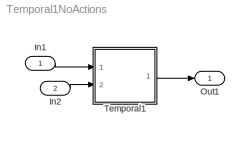
MODEL Temporal1NoActions
KIND model
BLOCK [Inport] In1
  IconDisplay = Port number
  OutDataTypeStr = boolean
  SID = 7
BLOCK [Inport] In2
  IconDisplay = Port number
  OutDataTypeStr = boolean
  Port = 2
  SID = 8
BLOCK [Outport] Out1
  IconDisplay = Port number
  SID = 6
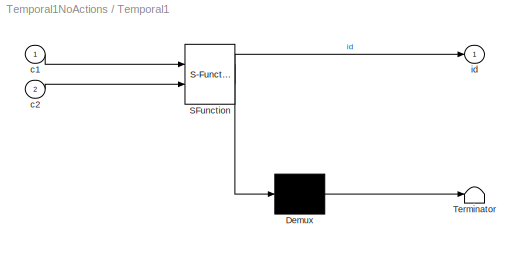
BLOCK [SubSystem] Temporal1
  ErrorFcn = Stateflow.Translate.translate
  PermitHierarchicalResolution = ExplicitOnly
  Ports = [2, 1]
  RequestExecContextInheritance = off
  SFBlockType = Chart
  SID = 1
  TreatAsAtomicUnit = on
  Variant = off
BLOCK [Demux] Temporal1/ Demux 
  Outputs = 1
  Ports = [1, 1]
  SID = 1::13
BLOCK [S-Function] Temporal1/ SFunction 
  EnableBusSupport = on
  FunctionName = sf_sfun
  PortCounts = [2 2]
  Ports = [2, 2]
  SFcnIsStateOwnerBlock = off
  SFunctionDeploymentMode = off
  SID = 1::12
  Tag = Stateflow S-Function Temporal1NoActions 1
BLOCK [Terminator] Temporal1/ Terminator 
  SID = 1::14
BLOCK [Inport] Temporal1/c1
  IconDisplay = Port number
  SID = 1::15
BLOCK [Inport] Temporal1/c2
  IconDisplay = Port number
  Port = 2
  SID = 1::16
BLOCK [Outport] Temporal1/id
  IconDisplay = Port number
  SID = 1::17
LINE In1:1 -> Temporal1:1
LINE In2:1 -> Temporal1:2
LINE Temporal1/ Demux :1 -> Temporal1/ Terminator :1
LINE Temporal1/ SFunction :1 -> Temporal1/ Demux :1
LINE Temporal1/ SFunction :2 -> Temporal1/id:1
LINE Temporal1/c1:1 -> Temporal1/ SFunction :1
LINE Temporal1/c2:1 -> Temporal1/ SFunction :2
LINE Temporal1:1 -> Out1:1
CHART Temporal1 states=2 transitions=3
  STATE_LABEL 'A/\\nen : id=2;'
  STATE_LABEL 'B/\\nen : id=1;'
